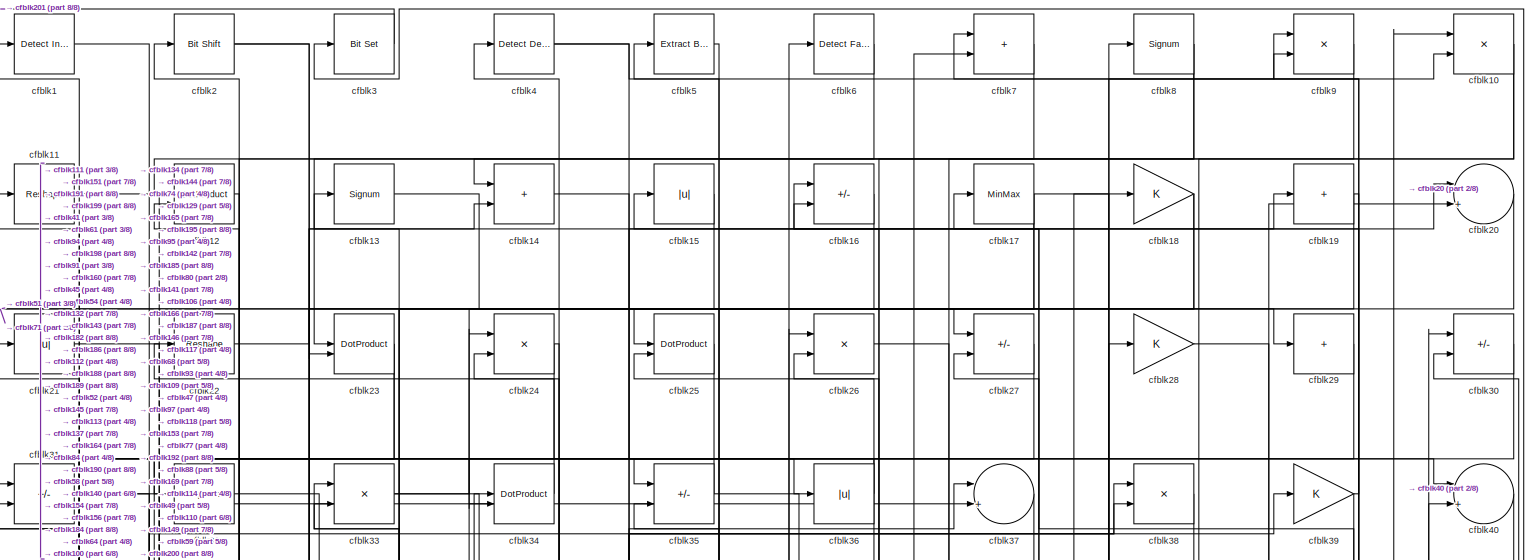
[diagram: root canvas - part 1/8, full width, top band]
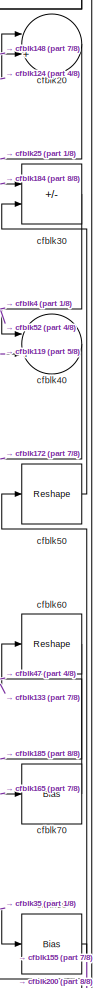
[diagram: root canvas - part 2/8, top right region]
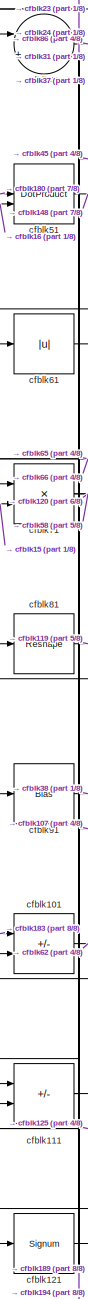
[diagram: root canvas - part 3/8, middle left region]
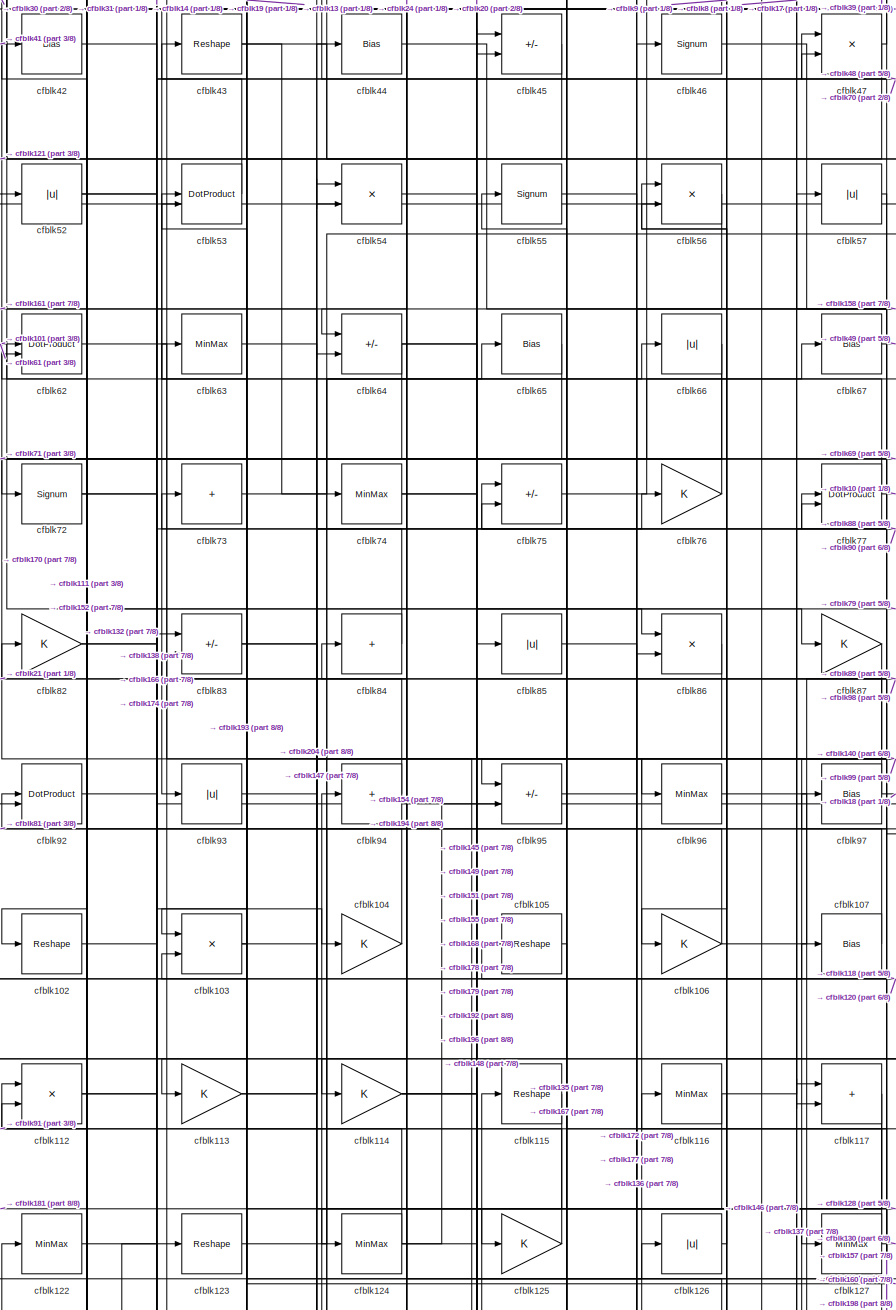
[diagram: root canvas - part 4/8, central region]
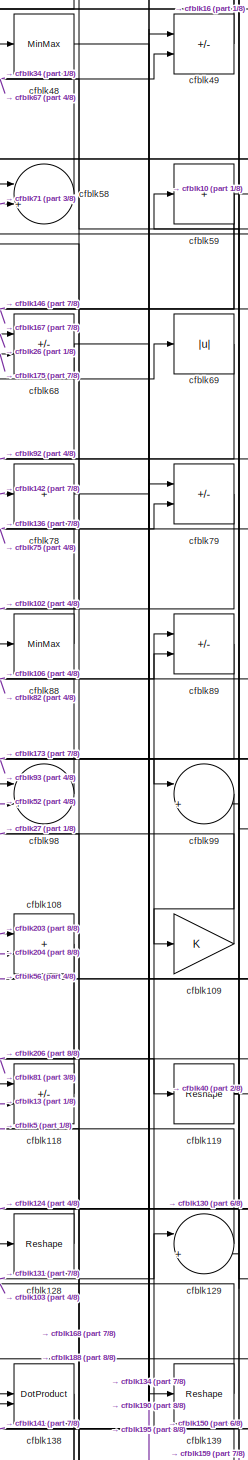
[diagram: root canvas - part 5/8, middle right region]
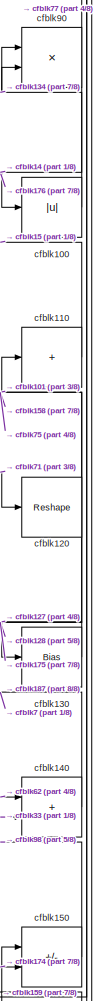
[diagram: root canvas - part 6/8, middle right region]
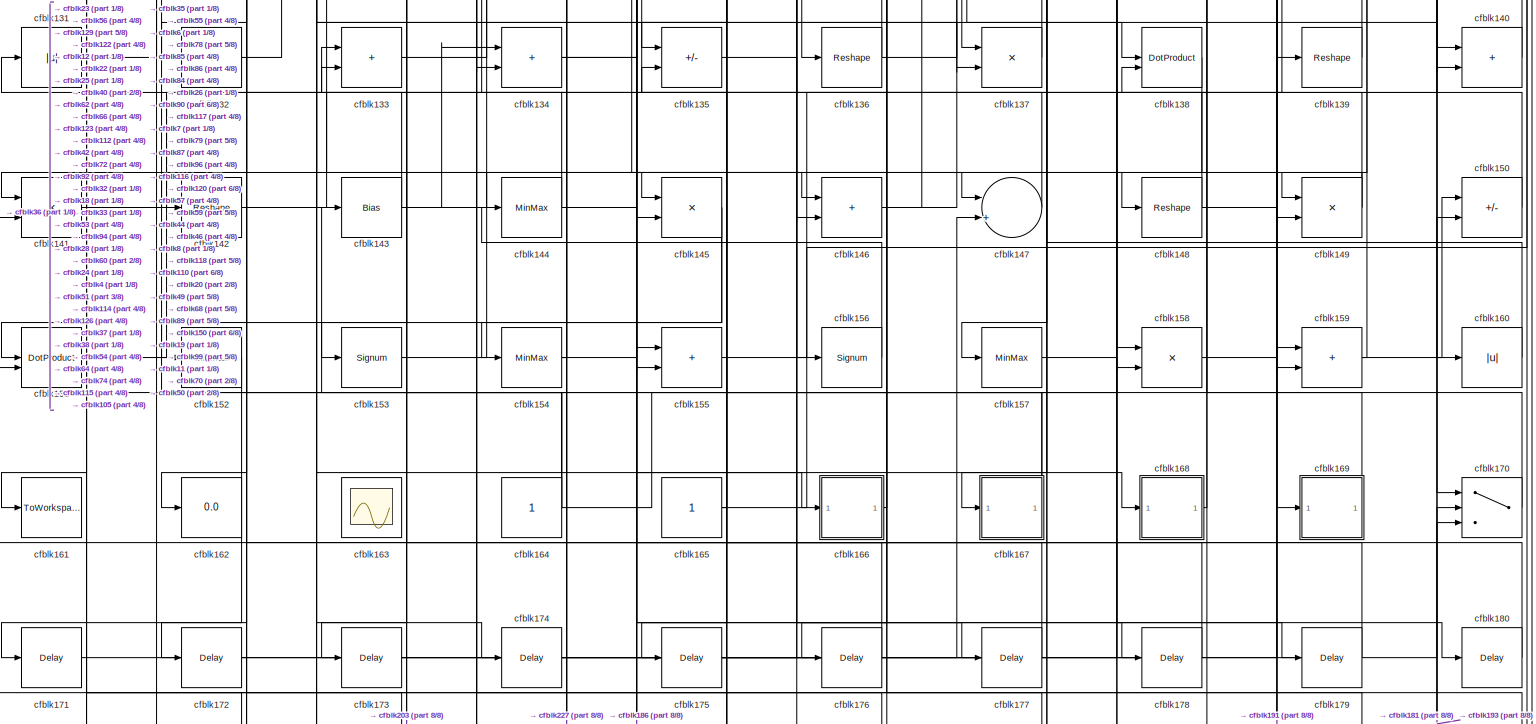
[diagram: root canvas - part 7/8, full width, bottom band]
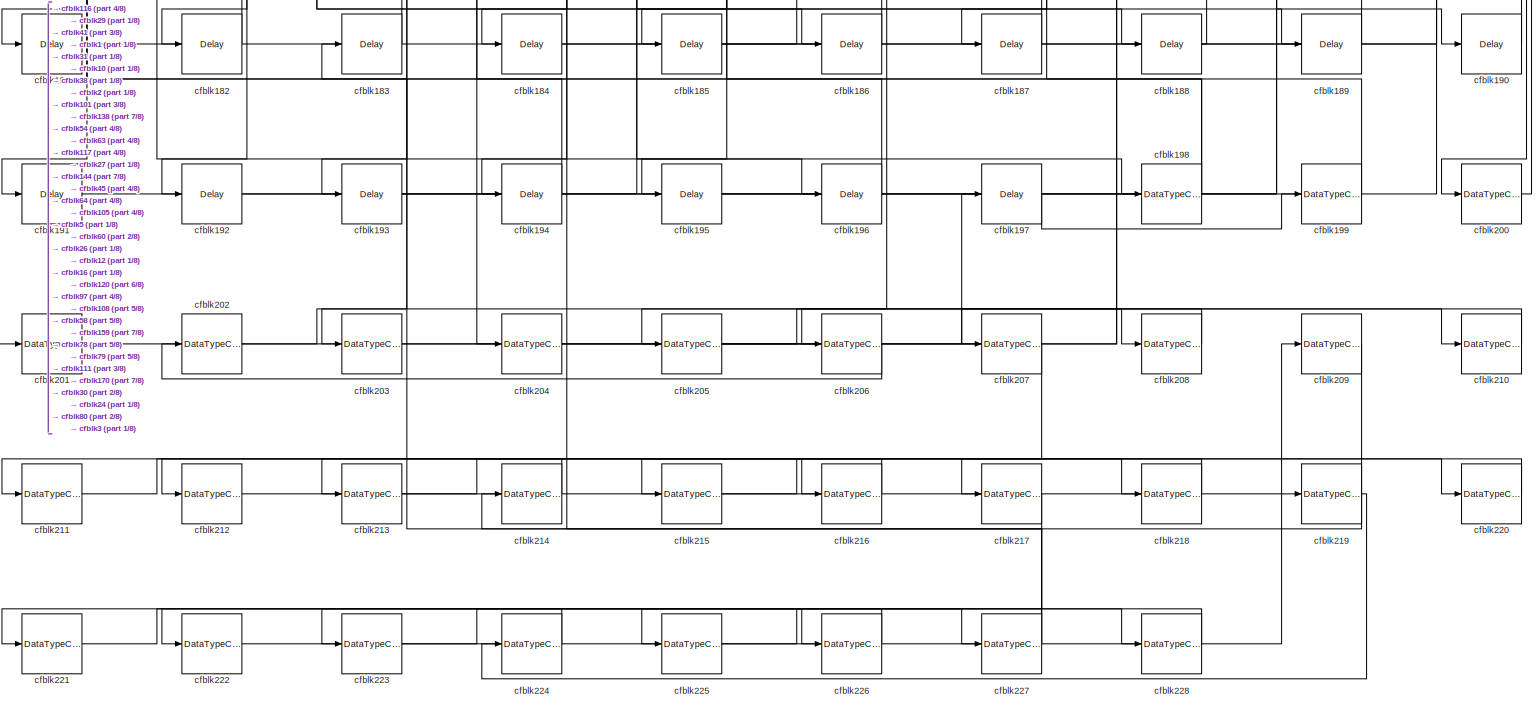
[diagram: root canvas - part 8/8, full width, bottom band]
MODEL slx_59b80c547d56
KIND model
CONFIG AbsTol = auto
CONFIG EnableMultiTasking = off
CONFIG FixedStep = auto
CONFIG MaxStep = auto
CONFIG MinStep = auto
CONFIG RelTol = 1e-3
CONFIG SampleTimeConstraint = Unconstrained
CONFIG SolverName = VariableStepAuto
CONFIG StartTime = 0.0
CONFIG StopTime = 10.0
BLOCK [Reference] cfblk1  REF=simulink/Logic and Bit
Operations/Detect
Increase
  LibrarySourceBlock = hdlsllib/Logic and Bit\nOperations/Detect\nIncrease
  SourceBlock = simulink/Logic and Bit\nOperations/Detect\nIncrease
  SourceType = Detect Increase
BLOCK [Product] cfblk10
  Inputs = */
  RndMeth = Zero
  SaturateOnIntegerOverflow = on
BLOCK [Abs] cfblk100
  SaturateOnIntegerOverflow = off
BLOCK [Sum] cfblk101
  IconShape = rectangular
  Inputs = +-
BLOCK [Reshape] cfblk102
BLOCK [Product] cfblk103
  Inputs = */
  RndMeth = Zero
  SaturateOnIntegerOverflow = on
BLOCK [Gain] cfblk104
BLOCK [Reshape] cfblk105
BLOCK [Gain] cfblk106
BLOCK [Bias] cfblk107
  Bias = 0.0
  SaturateOnIntegerOverflow = off
BLOCK [Sum] cfblk108
  IconShape = rectangular
BLOCK [Gain] cfblk109
BLOCK [Reshape] cfblk11
BLOCK [Sum] cfblk110
  IconShape = rectangular
  Inputs = +
BLOCK [Sum] cfblk111
  IconShape = rectangular
  Inputs = +-
BLOCK [Product] cfblk112
  Inputs = */
  RndMeth = Zero
  SaturateOnIntegerOverflow = on
BLOCK [Gain] cfblk113
BLOCK [Gain] cfblk114
BLOCK [Reshape] cfblk115
BLOCK [MinMax] cfblk116
BLOCK [Sum] cfblk117
  IconShape = rectangular
BLOCK [Sum] cfblk118
  IconShape = rectangular
  Inputs = +-
BLOCK [Reshape] cfblk119
BLOCK [DotProduct] cfblk12
  OutDataTypeStr = Inherit: Inherit via internal rule
BLOCK [Reshape] cfblk120
BLOCK [Signum] cfblk121
BLOCK [MinMax] cfblk122
BLOCK [Reshape] cfblk123
BLOCK [MinMax] cfblk124
BLOCK [Gain] cfblk125
BLOCK [Abs] cfblk126
  SaturateOnIntegerOverflow = off
BLOCK [MinMax] cfblk127
BLOCK [Reshape] cfblk128
BLOCK [Sum] cfblk129
  Inputs = |++
BLOCK [Signum] cfblk13
BLOCK [Bias] cfblk130
  Bias = 0.0
  SaturateOnIntegerOverflow = off
BLOCK [Abs] cfblk131
  SaturateOnIntegerOverflow = off
BLOCK [Sum] cfblk132
  IconShape = rectangular
  Inputs = +
BLOCK [Sum] cfblk133
  IconShape = rectangular
BLOCK [Sum] cfblk134
  IconShape = rectangular
BLOCK [Sum] cfblk135
  IconShape = rectangular
  Inputs = +-
BLOCK [Reshape] cfblk136
BLOCK [Product] cfblk137
  Inputs = */
  RndMeth = Zero
  SaturateOnIntegerOverflow = on
BLOCK [DotProduct] cfblk138
  OutDataTypeStr = Inherit: Inherit via internal rule
BLOCK [Reshape] cfblk139
BLOCK [Sum] cfblk14
  IconShape = rectangular
BLOCK [Sum] cfblk140
  IconShape = rectangular
BLOCK [Product] cfblk141
  Inputs = */
  RndMeth = Zero
  SaturateOnIntegerOverflow = on
BLOCK [Reshape] cfblk142
BLOCK [Bias] cfblk143
  Bias = 0.0
  SaturateOnIntegerOverflow = off
BLOCK [MinMax] cfblk144
BLOCK [Product] cfblk145
  Inputs = */
  RndMeth = Zero
  SaturateOnIntegerOverflow = on
BLOCK [Sum] cfblk146
  IconShape = rectangular
BLOCK [Sum] cfblk147
  Inputs = |++
BLOCK [Reshape] cfblk148
BLOCK [Product] cfblk149
  Inputs = */
  RndMeth = Zero
  SaturateOnIntegerOverflow = on
BLOCK [Abs] cfblk15
  SaturateOnIntegerOverflow = off
BLOCK [Sum] cfblk150
  IconShape = rectangular
  Inputs = +-
BLOCK [DotProduct] cfblk151
  OutDataTypeStr = Inherit: Inherit via internal rule
BLOCK [MinMax] cfblk152
BLOCK [Signum] cfblk153
BLOCK [MinMax] cfblk154
BLOCK [Sum] cfblk155
  IconShape = rectangular
BLOCK [Signum] cfblk156
BLOCK [MinMax] cfblk157
BLOCK [Product] cfblk158
  Inputs = */
  RndMeth = Zero
  SaturateOnIntegerOverflow = on
BLOCK [Sum] cfblk159
  IconShape = rectangular
BLOCK [Sum] cfblk16
  IconShape = rectangular
  Inputs = +-
BLOCK [Abs] cfblk160
  SaturateOnIntegerOverflow = off
BLOCK [ToWorkspace] cfblk161
  MaxDataPoints = inf
  SampleTime = -1
  SaveFormat = Timeseries
  VariableName = simout
BLOCK [Display] cfblk162
  Decimation = 1
BLOCK [Scope] cfblk163
  Floating = on
  NumInputPorts = 1
  ScopeSpecificationString = Simulink.scopes.TimeScopeBlockCfg('CurrentConfiguration', extmgr.ConfigurationSet(extmgr.Configuration('Core','General UI',true,'FigureColor',[0.156862745098039 0.156862745098039 0.156862745098039]),extmgr.Configuration('Core','Source UI',true),extmgr.Configuration('Sources','WiredSimulink',true,'DataLoggingVariableName','ScopeData1','DataLoggingSaveFormat','StructureWithTime','DataLoggingLimitDat...<+2713ch>
BLOCK [Constant] cfblk164
  SampleTime = -1
BLOCK [Constant] cfblk165
  SampleTime = -1
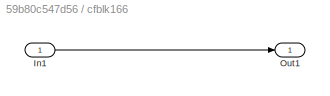
BLOCK [SubSystem] cfblk166
  LibrarySourceBlock = hdlsllib/Ports &\nSubsystems/Subsystem
BLOCK [Inport] cfblk166/In1
BLOCK [Outport] cfblk166/Out1
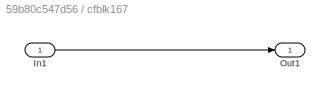
BLOCK [SubSystem] cfblk167
  LibrarySourceBlock = hdlsllib/Ports &\nSubsystems/Subsystem
BLOCK [Inport] cfblk167/In1
BLOCK [Outport] cfblk167/Out1
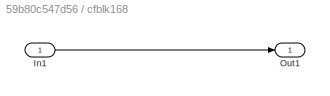
BLOCK [SubSystem] cfblk168
  LibrarySourceBlock = hdlsllib/Ports &\nSubsystems/Subsystem
BLOCK [Inport] cfblk168/In1
BLOCK [Outport] cfblk168/Out1
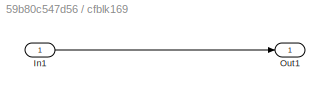
BLOCK [SubSystem] cfblk169
  LibrarySourceBlock = hdlsllib/Ports &\nSubsystems/Subsystem
BLOCK [Inport] cfblk169/In1
BLOCK [Outport] cfblk169/Out1
BLOCK [MinMax] cfblk17
BLOCK [Switch] cfblk170
  InputSameDT = off
  SaturateOnIntegerOverflow = off
BLOCK [Delay] cfblk171
  InputPortMap = u0
  SampleTime = 1
BLOCK [Delay] cfblk172
  InputPortMap = u0
  SampleTime = 1
BLOCK [Delay] cfblk173
  InputPortMap = u0
  SampleTime = 1
BLOCK [Delay] cfblk174
  InputPortMap = u0
  SampleTime = 1
BLOCK [Delay] cfblk175
  InputPortMap = u0
  SampleTime = 1
BLOCK [Delay] cfblk176
  InputPortMap = u0
  SampleTime = 1
BLOCK [Delay] cfblk177
  InputPortMap = u0
  SampleTime = 1
BLOCK [Delay] cfblk178
  InputPortMap = u0
  SampleTime = 1
BLOCK [Delay] cfblk179
  InputPortMap = u0
  SampleTime = 1
BLOCK [Gain] cfblk18
BLOCK [Delay] cfblk180
  InputPortMap = u0
  SampleTime = 1
BLOCK [Delay] cfblk181
  InputPortMap = u0
  SampleTime = 1
BLOCK [Delay] cfblk182
  InputPortMap = u0
  SampleTime = 1
BLOCK [Delay] cfblk183
  InputPortMap = u0
  SampleTime = 1
BLOCK [Delay] cfblk184
  InputPortMap = u0
  SampleTime = 1
BLOCK [Delay] cfblk185
  InputPortMap = u0
  SampleTime = 1
BLOCK [Delay] cfblk186
  InputPortMap = u0
  SampleTime = 1
BLOCK [Delay] cfblk187
  InputPortMap = u0
  SampleTime = 1
BLOCK [Delay] cfblk188
  InputPortMap = u0
  SampleTime = 1
BLOCK [Delay] cfblk189
  InputPortMap = u0
  SampleTime = 1
BLOCK [Sum] cfblk19
  IconShape = rectangular
  Inputs = +
BLOCK [Delay] cfblk190
  InputPortMap = u0
  SampleTime = 1
BLOCK [Delay] cfblk191
  InputPortMap = u0
  SampleTime = 1
BLOCK [Delay] cfblk192
  InputPortMap = u0
  SampleTime = 1
BLOCK [Delay] cfblk193
  InputPortMap = u0
  SampleTime = 1
BLOCK [Delay] cfblk194
  InputPortMap = u0
  SampleTime = 1
BLOCK [Delay] cfblk195
  InputPortMap = u0
  SampleTime = 1
BLOCK [Delay] cfblk196
  InputPortMap = u0
  SampleTime = 1
BLOCK [Delay] cfblk197
  InputPortMap = u0
  SampleTime = 1
BLOCK [DataTypeConversion] cfblk198
  RndMeth = Floor
  SaturateOnIntegerOverflow = off
BLOCK [DataTypeConversion] cfblk199
  OutDataTypeStr = uint8
  RndMeth = Floor
  SaturateOnIntegerOverflow = off
BLOCK [Reference] cfblk2  REF=hdlsllib/Logic and Bit
Operations/Bit Shift
  SourceBlock = hdlsllib/Logic and Bit\nOperations/Bit Shift
  SourceType = Bit Shift
BLOCK [Sum] cfblk20
  Inputs = |++
BLOCK [DataTypeConversion] cfblk200
  OutDataTypeStr = boolean
  RndMeth = Floor
  SaturateOnIntegerOverflow = off
BLOCK [DataTypeConversion] cfblk201
  OutDataTypeStr = uint8
  RndMeth = Floor
  SaturateOnIntegerOverflow = off
BLOCK [DataTypeConversion] cfblk202
  RndMeth = Floor
  SaturateOnIntegerOverflow = off
BLOCK [DataTypeConversion] cfblk203
  OutDataTypeStr = uint8
  RndMeth = Floor
  SaturateOnIntegerOverflow = off
BLOCK [DataTypeConversion] cfblk204
  OutDataTypeStr = uint8
  RndMeth = Floor
  SaturateOnIntegerOverflow = off
BLOCK [DataTypeConversion] cfblk205
  RndMeth = Floor
  SaturateOnIntegerOverflow = off
BLOCK [DataTypeConversion] cfblk206
  OutDataTypeStr = uint8
  RndMeth = Floor
  SaturateOnIntegerOverflow = off
BLOCK [DataTypeConversion] cfblk207
  RndMeth = Floor
  SaturateOnIntegerOverflow = off
BLOCK [DataTypeConversion] cfblk208
  OutDataTypeStr = uint8
  RndMeth = Floor
  SaturateOnIntegerOverflow = off
BLOCK [DataTypeConversion] cfblk209
  RndMeth = Floor
  SaturateOnIntegerOverflow = off
BLOCK [Abs] cfblk21
  SaturateOnIntegerOverflow = off
BLOCK [DataTypeConversion] cfblk210
  OutDataTypeStr = uint8
  RndMeth = Floor
  SaturateOnIntegerOverflow = off
BLOCK [DataTypeConversion] cfblk211
  RndMeth = Floor
  SaturateOnIntegerOverflow = off
BLOCK [DataTypeConversion] cfblk212
  OutDataTypeStr = uint8
  RndMeth = Floor
  SaturateOnIntegerOverflow = off
BLOCK [DataTypeConversion] cfblk213
  RndMeth = Floor
  SaturateOnIntegerOverflow = off
BLOCK [DataTypeConversion] cfblk214
  OutDataTypeStr = uint8
  RndMeth = Floor
  SaturateOnIntegerOverflow = off
BLOCK [DataTypeConversion] cfblk215
  RndMeth = Floor
  SaturateOnIntegerOverflow = off
BLOCK [DataTypeConversion] cfblk216
  OutDataTypeStr = uint8
  RndMeth = Floor
  SaturateOnIntegerOverflow = off
BLOCK [DataTypeConversion] cfblk217
  RndMeth = Floor
  SaturateOnIntegerOverflow = off
BLOCK [DataTypeConversion] cfblk218
  OutDataTypeStr = uint8
  RndMeth = Floor
  SaturateOnIntegerOverflow = off
BLOCK [DataTypeConversion] cfblk219
  RndMeth = Floor
  SaturateOnIntegerOverflow = off
BLOCK [Reshape] cfblk22
BLOCK [DataTypeConversion] cfblk220
  OutDataTypeStr = uint8
  RndMeth = Floor
  SaturateOnIntegerOverflow = off
BLOCK [DataTypeConversion] cfblk221
  RndMeth = Floor
  SaturateOnIntegerOverflow = off
BLOCK [DataTypeConversion] cfblk222
  OutDataTypeStr = uint8
  RndMeth = Floor
  SaturateOnIntegerOverflow = off
BLOCK [DataTypeConversion] cfblk223
  RndMeth = Floor
  SaturateOnIntegerOverflow = off
BLOCK [DataTypeConversion] cfblk224
  OutDataTypeStr = uint8
  RndMeth = Floor
  SaturateOnIntegerOverflow = off
BLOCK [DataTypeConversion] cfblk225
  RndMeth = Floor
  SaturateOnIntegerOverflow = off
BLOCK [DataTypeConversion] cfblk226
  OutDataTypeStr = uint8
  RndMeth = Floor
  SaturateOnIntegerOverflow = off
BLOCK [DataTypeConversion] cfblk227
  RndMeth = Floor
  SaturateOnIntegerOverflow = off
BLOCK [DataTypeConversion] cfblk228
  OutDataTypeStr = uint8
  RndMeth = Floor
  SaturateOnIntegerOverflow = off
BLOCK [DotProduct] cfblk23
  OutDataTypeStr = Inherit: Inherit via internal rule
BLOCK [Product] cfblk24
  Inputs = */
  RndMeth = Zero
  SaturateOnIntegerOverflow = on
BLOCK [DotProduct] cfblk25
  OutDataTypeStr = Inherit: Inherit via internal rule
BLOCK [Product] cfblk26
  Inputs = */
  RndMeth = Zero
  SaturateOnIntegerOverflow = on
BLOCK [Sum] cfblk27
  IconShape = rectangular
  Inputs = +-
BLOCK [Gain] cfblk28
BLOCK [Sum] cfblk29
  IconShape = rectangular
  Inputs = +
BLOCK [Reference] cfblk3  REF=simulink/Logic and Bit
Operations/Bit Set
  LibrarySourceBlock = hdlsllib/Logic and Bit\nOperations/Bit Set
  SourceBlock = simulink/Logic and Bit\nOperations/Bit Set
  SourceType = Bit Set
BLOCK [Sum] cfblk30
  IconShape = rectangular
  Inputs = +-
BLOCK [Sum] cfblk31
  IconShape = rectangular
  Inputs = +-
BLOCK [Signum] cfblk32
BLOCK [Product] cfblk33
  Inputs = */
  RndMeth = Zero
  SaturateOnIntegerOverflow = on
BLOCK [DotProduct] cfblk34
  OutDataTypeStr = Inherit: Inherit via internal rule
BLOCK [Sum] cfblk35
  IconShape = rectangular
  Inputs = +-
BLOCK [Abs] cfblk36
  SaturateOnIntegerOverflow = off
BLOCK [Sum] cfblk37
  Inputs = |++
BLOCK [Product] cfblk38
  Inputs = */
  RndMeth = Zero
  SaturateOnIntegerOverflow = on
BLOCK [Gain] cfblk39
BLOCK [Reference] cfblk4  REF=simulink/Logic and Bit
Operations/Detect
Decrease
  LibrarySourceBlock = hdlsllib/Logic and Bit\nOperations/Detect\nDecrease
  SourceBlock = simulink/Logic and Bit\nOperations/Detect\nDecrease
  SourceType = Detect Decrease
BLOCK [Sum] cfblk40
  Inputs = |++
BLOCK [Sum] cfblk41
  Inputs = |++
BLOCK [Bias] cfblk42
  Bias = 0.0
  SaturateOnIntegerOverflow = off
BLOCK [Reshape] cfblk43
BLOCK [Bias] cfblk44
  Bias = 0.0
  SaturateOnIntegerOverflow = off
BLOCK [Sum] cfblk45
  IconShape = rectangular
  Inputs = +-
BLOCK [Signum] cfblk46
BLOCK [Product] cfblk47
  Inputs = */
  RndMeth = Zero
  SaturateOnIntegerOverflow = on
BLOCK [MinMax] cfblk48
BLOCK [Sum] cfblk49
  IconShape = rectangular
  Inputs = +-
BLOCK [Reference] cfblk5  REF=simulink/Logic and Bit
Operations/Extract Bits
  LibrarySourceBlock = hdlsllib/Logic and Bit\nOperations/Extract Bits
  SourceBlock = simulink/Logic and Bit\nOperations/Extract Bits
  SourceType = Extract Bits
BLOCK [Reshape] cfblk50
BLOCK [DotProduct] cfblk51
  OutDataTypeStr = Inherit: Inherit via internal rule
BLOCK [Abs] cfblk52
  SaturateOnIntegerOverflow = off
BLOCK [DotProduct] cfblk53
  OutDataTypeStr = Inherit: Inherit via internal rule
BLOCK [Product] cfblk54
  Inputs = */
  RndMeth = Zero
  SaturateOnIntegerOverflow = on
BLOCK [Signum] cfblk55
BLOCK [Product] cfblk56
  Inputs = */
  RndMeth = Zero
  SaturateOnIntegerOverflow = on
BLOCK [Abs] cfblk57
  SaturateOnIntegerOverflow = off
BLOCK [Sum] cfblk58
  Inputs = |++
BLOCK [Sum] cfblk59
  IconShape = rectangular
  Inputs = +
BLOCK [Reference] cfblk6  REF=hdlsllib/Logic and Bit
Operations/Detect Fall
Nonpositive
  SourceBlock = hdlsllib/Logic and Bit\nOperations/Detect Fall\nNonpositive
  SourceType = Detect Fall Nonpositive
BLOCK [Reshape] cfblk60
BLOCK [Abs] cfblk61
  SaturateOnIntegerOverflow = off
BLOCK [DotProduct] cfblk62
  OutDataTypeStr = Inherit: Inherit via internal rule
BLOCK [MinMax] cfblk63
BLOCK [Sum] cfblk64
  IconShape = rectangular
  Inputs = +-
BLOCK [Bias] cfblk65
  Bias = 0.0
  SaturateOnIntegerOverflow = off
BLOCK [Abs] cfblk66
  SaturateOnIntegerOverflow = off
BLOCK [Bias] cfblk67
  Bias = 0.0
  SaturateOnIntegerOverflow = off
BLOCK [Sum] cfblk68
  IconShape = rectangular
  Inputs = +-
BLOCK [Abs] cfblk69
  SaturateOnIntegerOverflow = off
BLOCK [Sum] cfblk7
  IconShape = rectangular
BLOCK [Bias] cfblk70
  Bias = 0.0
  SaturateOnIntegerOverflow = off
BLOCK [Product] cfblk71
  Inputs = */
  RndMeth = Zero
  SaturateOnIntegerOverflow = on
BLOCK [Signum] cfblk72
BLOCK [Sum] cfblk73
  IconShape = rectangular
  Inputs = +
BLOCK [MinMax] cfblk74
BLOCK [Sum] cfblk75
  IconShape = rectangular
  Inputs = +-
BLOCK [Gain] cfblk76
BLOCK [DotProduct] cfblk77
  OutDataTypeStr = Inherit: Inherit via internal rule
BLOCK [Sum] cfblk78
  IconShape = rectangular
  Inputs = +
BLOCK [Sum] cfblk79
  IconShape = rectangular
  Inputs = +-
BLOCK [Signum] cfblk8
BLOCK [Bias] cfblk80
  Bias = 0.0
  SaturateOnIntegerOverflow = off
BLOCK [Reshape] cfblk81
BLOCK [Gain] cfblk82
BLOCK [Sum] cfblk83
  IconShape = rectangular
  Inputs = +-
BLOCK [Sum] cfblk84
  IconShape = rectangular
  Inputs = +
BLOCK [Abs] cfblk85
  SaturateOnIntegerOverflow = off
BLOCK [Product] cfblk86
  Inputs = */
  RndMeth = Zero
  SaturateOnIntegerOverflow = on
BLOCK [Gain] cfblk87
BLOCK [MinMax] cfblk88
BLOCK [Sum] cfblk89
  IconShape = rectangular
  Inputs = +-
BLOCK [Product] cfblk9
  Inputs = */
  RndMeth = Zero
  SaturateOnIntegerOverflow = on
BLOCK [Product] cfblk90
  Inputs = */
  RndMeth = Zero
  SaturateOnIntegerOverflow = on
BLOCK [Bias] cfblk91
  Bias = 0.0
  SaturateOnIntegerOverflow = off
BLOCK [DotProduct] cfblk92
  OutDataTypeStr = Inherit: Inherit via internal rule
BLOCK [Abs] cfblk93
  SaturateOnIntegerOverflow = off
BLOCK [Sum] cfblk94
  IconShape = rectangular
  Inputs = +
BLOCK [Sum] cfblk95
  IconShape = rectangular
  Inputs = +-
BLOCK [MinMax] cfblk96
BLOCK [Bias] cfblk97
  Bias = 0.0
  SaturateOnIntegerOverflow = off
BLOCK [Sum] cfblk98
  Inputs = |++
BLOCK [Sum] cfblk99
  Inputs = |++
LINE cfblk100:1 -> cfblk90:1
LINE cfblk101:1 -> cfblk62:1
LINE cfblk102:1 -> cfblk83:1
NET cfblk103:1 -> cfblk73:1, cfblk77:2
LINE cfblk104:1 -> cfblk92:1
LINE cfblk105:1 -> cfblk135:1
NET cfblk106:1 -> cfblk42:1, cfblk89:2
LINE cfblk107:1 -> cfblk81:1
LINE cfblk108:1 -> cfblk206:1
LINE cfblk109:1 -> cfblk27:2
NET cfblk10:1 -> cfblk182:1, cfblk88:1
LINE cfblk110:1 -> cfblk15:1
NET cfblk111:1 -> cfblk31:1, cfblk37:2
NET cfblk112:1 -> cfblk14:2, cfblk166:1
NET cfblk113:1 -> cfblk44:1, cfblk76:1
NET cfblk114:1 -> cfblk149:2, cfblk178:1, cfblk179:1
LINE cfblk115:1 -> cfblk145:2
NET cfblk116:1 -> cfblk181:1, cfblk57:1
NET cfblk117:1 -> cfblk193:1, cfblk194:1
LINE cfblk118:1 -> cfblk56:2
NET cfblk119:1 -> cfblk129:2, cfblk40:2, cfblk59:1
LINE cfblk11:1 -> cfblk160:1
NET cfblk120:1 -> cfblk101:2, cfblk175:1, cfblk187:1, cfblk75:2
LINE cfblk121:1 -> cfblk107:1
LINE cfblk122:1 -> cfblk147:1
LINE cfblk123:1 -> cfblk65:1
NET cfblk124:1 -> cfblk112:1, cfblk20:1, cfblk95:2
LINE cfblk125:1 -> cfblk91:1
LINE cfblk126:1 -> cfblk56:1
NET cfblk127:1 -> cfblk130:1, cfblk63:1
LINE cfblk128:1 -> cfblk124:1
LINE cfblk129:1 -> cfblk5:1
LINE cfblk12:1 -> cfblk132:1
LINE cfblk130:1 -> cfblk128:1
LINE cfblk131:1 -> cfblk129:1
LINE cfblk132:1 -> cfblk123:1
LINE cfblk133:1 -> cfblk60:1
NET cfblk134:1 -> cfblk38:1, cfblk90:2
LINE cfblk135:1 -> cfblk156:1
NET cfblk136:1 -> cfblk79:2, cfblk84:1
LINE cfblk137:1 -> cfblk33:1
LINE cfblk138:1 -> cfblk203:1
LINE cfblk139:1 -> cfblk103:2
LINE cfblk13:1 -> cfblk118:2
LINE cfblk140:1 -> cfblk7:1
LINE cfblk141:1 -> cfblk89:1
NET cfblk142:1 -> cfblk6:1, cfblk78:1
NET cfblk143:1 -> cfblk134:1, cfblk146:1, cfblk22:1
NET cfblk144:1 -> cfblk133:2, cfblk186:1, cfblk37:1
NET cfblk145:1 -> cfblk154:1, cfblk162:1
NET cfblk146:1 -> cfblk117:1, cfblk7:2
LINE cfblk147:1 -> cfblk94:1
NET cfblk148:1 -> cfblk115:1, cfblk20:2
NET cfblk149:1 -> cfblk11:1, cfblk141:1
LINE cfblk14:1 -> cfblk100:1
LINE cfblk150:1 -> cfblk98:1
LINE cfblk151:1 -> cfblk133:1
LINE cfblk152:1 -> cfblk171:1
LINE cfblk153:1 -> cfblk28:1
NET cfblk154:1 -> cfblk126:1, cfblk4:1
LINE cfblk155:1 -> cfblk50:1
LINE cfblk156:1 -> cfblk24:2
LINE cfblk157:1 -> cfblk180:1
LINE cfblk158:1 -> cfblk110:1
NET cfblk159:1 -> cfblk150:1, cfblk99:2
LINE cfblk15:1 -> cfblk71:2
LINE cfblk160:1 -> cfblk116:1
NET cfblk164:1 -> cfblk131:1, cfblk143:1, cfblk33:2, cfblk8:1
NET cfblk165:1 -> cfblk35:2, cfblk70:1
LINE cfblk166/In1:1 -> cfblk166/Out1:1
LINE cfblk166:1 -> cfblk26:2
LINE cfblk167/In1:1 -> cfblk167/Out1:1
NET cfblk167:1 -> cfblk112:2, cfblk55:1
LINE cfblk168/In1:1 -> cfblk168/Out1:1
LINE cfblk168:1 -> cfblk118:1
LINE cfblk169/In1:1 -> cfblk169/Out1:1
LINE cfblk169:1 -> cfblk138:2
LINE cfblk16:1 -> cfblk51:2
LINE cfblk170:1 -> cfblk122:1
LINE cfblk171:1 -> cfblk147:2
LINE cfblk172:1 -> cfblk86:2
LINE cfblk173:1 -> cfblk49:1
LINE cfblk174:1 -> cfblk150:2
LINE cfblk175:1 -> cfblk68:2
LINE cfblk176:1 -> cfblk135:2
LINE cfblk177:1 -> cfblk53:2
LINE cfblk178:1 -> cfblk155:1
LINE cfblk179:1 -> cfblk62:2
NET cfblk17:1 -> cfblk29:1, cfblk34:2, cfblk95:1
LINE cfblk180:1 -> cfblk51:1
LINE cfblk181:1 -> cfblk170:3
LINE cfblk182:1 -> cfblk31:2
LINE cfblk183:1 -> cfblk101:1
LINE cfblk184:1 -> cfblk30:1
LINE cfblk185:1 -> cfblk26:1
LINE cfblk186:1 -> cfblk12:2
LINE cfblk187:1 -> cfblk16:2
LINE cfblk188:1 -> cfblk58:1
LINE cfblk189:1 -> cfblk111:2
NET cfblk18:1 -> cfblk113:1, cfblk153:1
LINE cfblk190:1 -> cfblk24:1
LINE cfblk191:1 -> cfblk159:1
LINE cfblk192:1 -> cfblk45:1
LINE cfblk193:1 -> cfblk170:2
LINE cfblk194:1 -> cfblk41:2
LINE cfblk195:1 -> cfblk79:1
LINE cfblk196:1 -> cfblk54:1
LINE cfblk197:1 -> cfblk199:1
NET cfblk198:1 -> cfblk105:1, cfblk97:1
LINE cfblk199:1 -> cfblk1:1
NET cfblk19:1 -> cfblk149:1, cfblk23:2
LINE cfblk1:1 -> cfblk198:1
LINE cfblk200:1 -> cfblk3:1
LINE cfblk201:1 -> cfblk197:1
LINE cfblk202:1 -> cfblk208:1
LINE cfblk203:1 -> cfblk108:1
LINE cfblk204:1 -> cfblk108:2
LINE cfblk205:1 -> cfblk210:1
LINE cfblk206:1 -> cfblk202:1
LINE cfblk207:1 -> cfblk212:1
LINE cfblk208:1 -> cfblk205:1
LINE cfblk209:1 -> cfblk214:1
LINE cfblk20:1 -> cfblk25:1
LINE cfblk210:1 -> cfblk207:1
LINE cfblk211:1 -> cfblk216:1
LINE cfblk212:1 -> cfblk209:1
LINE cfblk213:1 -> cfblk218:1
LINE cfblk214:1 -> cfblk211:1
LINE cfblk215:1 -> cfblk220:1
LINE cfblk216:1 -> cfblk213:1
LINE cfblk217:1 -> cfblk222:1
LINE cfblk218:1 -> cfblk215:1
LINE cfblk219:1 -> cfblk224:1
LINE cfblk21:1 -> cfblk54:2
LINE cfblk220:1 -> cfblk217:1
LINE cfblk221:1 -> cfblk226:1
LINE cfblk222:1 -> cfblk219:1
LINE cfblk223:1 -> cfblk228:1
LINE cfblk224:1 -> cfblk221:1
LINE cfblk225:1 -> cfblk227:1
LINE cfblk226:1 -> cfblk223:1
NET cfblk227:1 -> cfblk144:1, cfblk183:1
LINE cfblk228:1 -> cfblk225:1
LINE cfblk22:1 -> cfblk27:1
NET cfblk23:1 -> cfblk151:1, cfblk61:1
NET cfblk24:1 -> cfblk41:1, cfblk64:1
LINE cfblk25:1 -> cfblk142:1
LINE cfblk26:1 -> cfblk68:1
LINE cfblk27:1 -> cfblk184:1
LINE cfblk28:1 -> cfblk169:1
LINE cfblk29:1 -> cfblk191:1
NET cfblk2:1 -> cfblk188:1, cfblk189:1
LINE cfblk30:1 -> cfblk52:1
NET cfblk31:1 -> cfblk45:2, cfblk64:2
LINE cfblk32:1 -> cfblk145:1
NET cfblk33:1 -> cfblk140:2, cfblk36:1
LINE cfblk34:1 -> cfblk2:1
NET cfblk35:1 -> cfblk32:1, cfblk80:1
NET cfblk36:1 -> cfblk141:2, cfblk25:2, cfblk35:1
LINE cfblk37:1 -> cfblk93:1
LINE cfblk38:1 -> cfblk192:1
NET cfblk39:1 -> cfblk114:1, cfblk9:1
LINE cfblk3:1 -> cfblk201:1
LINE cfblk40:1 -> cfblk172:1
LINE cfblk41:1 -> cfblk86:1
LINE cfblk42:1 -> cfblk174:1
NET cfblk43:1 -> cfblk74:1, cfblk85:1
LINE cfblk44:1 -> cfblk158:1
LINE cfblk45:1 -> cfblk121:1
LINE cfblk46:1 -> cfblk158:2
NET cfblk47:1 -> cfblk103:1, cfblk17:1
LINE cfblk48:1 -> cfblk139:1
LINE cfblk49:1 -> cfblk16:1
NET cfblk4:1 -> cfblk40:1, cfblk9:2
LINE cfblk50:1 -> cfblk30:2
LINE cfblk51:1 -> cfblk148:1
NET cfblk52:1 -> cfblk19:1, cfblk98:2
LINE cfblk53:1 -> cfblk43:1
LINE cfblk54:1 -> cfblk155:2
LINE cfblk55:1 -> cfblk127:1
LINE cfblk56:1 -> cfblk161:1
LINE cfblk57:1 -> cfblk157:1
LINE cfblk58:1 -> cfblk34:1
NET cfblk59:1 -> cfblk10:1, cfblk146:2, cfblk167:1
LINE cfblk5:1 -> cfblk195:1
LINE cfblk60:1 -> cfblk185:1
LINE cfblk61:1 -> cfblk66:1
LINE cfblk62:1 -> cfblk140:1
LINE cfblk63:1 -> cfblk204:1
NET cfblk64:1 -> cfblk151:2, cfblk196:1, cfblk87:1
LINE cfblk65:1 -> cfblk71:1
NET cfblk66:1 -> cfblk111:1, cfblk152:1
LINE cfblk67:1 -> cfblk49:2
NET cfblk68:1 -> cfblk134:2, cfblk159:2
LINE cfblk69:1 -> cfblk92:2
LINE cfblk6:1 -> cfblk12:1
LINE cfblk70:1 -> cfblk47:1
NET cfblk71:1 -> cfblk120:1, cfblk58:2
NET cfblk72:1 -> cfblk104:1, cfblk137:2
LINE cfblk73:1 -> cfblk67:1
NET cfblk74:1 -> cfblk168:1, cfblk39:1
LINE cfblk75:1 -> cfblk69:1
LINE cfblk76:1 -> cfblk72:1
NET cfblk77:1 -> cfblk10:2, cfblk53:1
LINE cfblk78:1 -> cfblk190:1
LINE cfblk79:1 -> cfblk102:1
LINE cfblk7:1 -> cfblk14:1
LINE cfblk80:1 -> cfblk200:1
LINE cfblk81:1 -> cfblk119:1
NET cfblk82:1 -> cfblk47:2, cfblk48:1
NET cfblk83:1 -> cfblk125:1, cfblk96:1
LINE cfblk84:1 -> cfblk13:1
LINE cfblk85:1 -> cfblk177:1
LINE cfblk86:1 -> cfblk136:1
LINE cfblk87:1 -> cfblk137:1
LINE cfblk88:1 -> cfblk75:1
LINE cfblk89:1 -> cfblk173:1
NET cfblk8:1 -> cfblk117:2, cfblk23:1
NET cfblk90:1 -> cfblk176:1, cfblk77:1
LINE cfblk91:1 -> cfblk38:2
LINE cfblk92:1 -> cfblk138:1
LINE cfblk93:1 -> cfblk99:1
LINE cfblk94:1 -> cfblk21:1
LINE cfblk95:1 -> cfblk46:1
LINE cfblk96:1 -> cfblk170:1
NET cfblk97:1 -> cfblk18:1, cfblk83:2
LINE cfblk98:1 -> cfblk82:1
LINE cfblk99:1 -> cfblk109:1
LINE cfblk9:1 -> cfblk106:1
note: NET lines group one-source signal fan-out (src -> all destinations, sorted); 1:1 wires keep LINE
